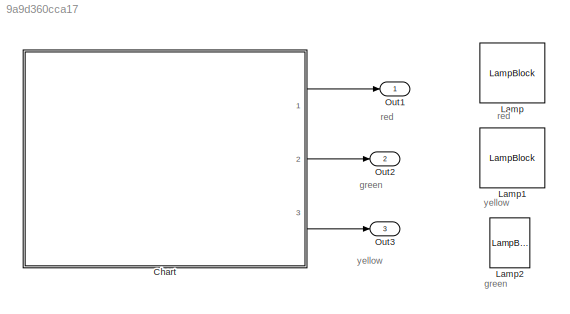
MODEL slx_9a9d360cca17
KIND model
CONFIG AbsTol = auto
CONFIG EnableMultiTasking = off
CONFIG FixedStep = auto
CONFIG MaxStep = auto
CONFIG MinStep = auto
CONFIG RelTol = 1e-3
CONFIG SampleTimeConstraint = Unconstrained
CONFIG Solver = VariableStepAuto
CONFIG SolverName = VariableStepAuto
CONFIG StartTime = 0.0
CONFIG StopTime = 10.0
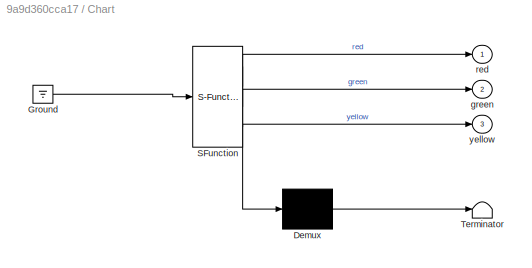
BLOCK [SubSystem] Chart
  ErrorFcn = Stateflow.Translate.translate
  PermitHierarchicalResolution = ExplicitOnly
  Ports = [0, 3]
  RequestExecContextInheritance = off
  SFBlockType = Chart
  TreatAsAtomicUnit = on
BLOCK [Demux] Chart/ Demux 
  Outputs = 1
  Ports = [1, 1]
BLOCK [Ground] Chart/ Ground 
BLOCK [S-Function] Chart/ SFunction 
  EnableBusSupport = on
  FunctionName = sf_sfun
  PortCounts = [1 4]
  Ports = [1, 4]
  SFcnIsStateOwnerBlock = off
  SFunctionDeploymentMode = off
  Tag = Stateflow S-Function lamp_stateFlow 3
BLOCK [Terminator] Chart/ Terminator 
BLOCK [Outport] Chart/green
  IconDisplay = Port number
  Port = 2
BLOCK [Outport] Chart/red
  IconDisplay = Port number
BLOCK [Outport] Chart/yellow
  IconDisplay = Port number
  Port = 3
BLOCK [LampBlock] Lamp
  WebBlockId = 2
BLOCK [LampBlock] Lamp1
  WebBlockId = 3
BLOCK [LampBlock] Lamp2
  WebBlockId = 4
BLOCK [Outport] Out1
  IconDisplay = Port number
BLOCK [Outport] Out2
  IconDisplay = Port number
  Port = 2
BLOCK [Outport] Out3
  IconDisplay = Port number
  Port = 3
ANNOTATION (root): green
ANNOTATION (root): red
ANNOTATION (root): yellow
LINE Chart:1 -> Out1:1
LINE Chart:2 -> Out2:1
LINE Chart:3 -> Out3:1
CHART Chart states=3 transitions=4
  STATE_LABEL 'yellow_state\nen:\nred=0;\nyellow=0;\ngreen=0;\ndu:\nred = 0;\ngreen=0;\nyellow=1;\nafter(3,sec);\nexit:\nyellow=0;\n'
  STATE_LABEL 'red_state\nen:\ndu:\nred = 1;\ngreen=0;\nyellow=0;\nafter(3,sec);\nexit:\nred=0;\n'
  STATE_LABEL 'green_state\nen:\nred=0;\nyellow=0;\ngreen=0;\ndu:\nred = 0;\ngreen=1;\nyellow=0;\nafter(3,sec);\nexit:\ngreen=0;'
